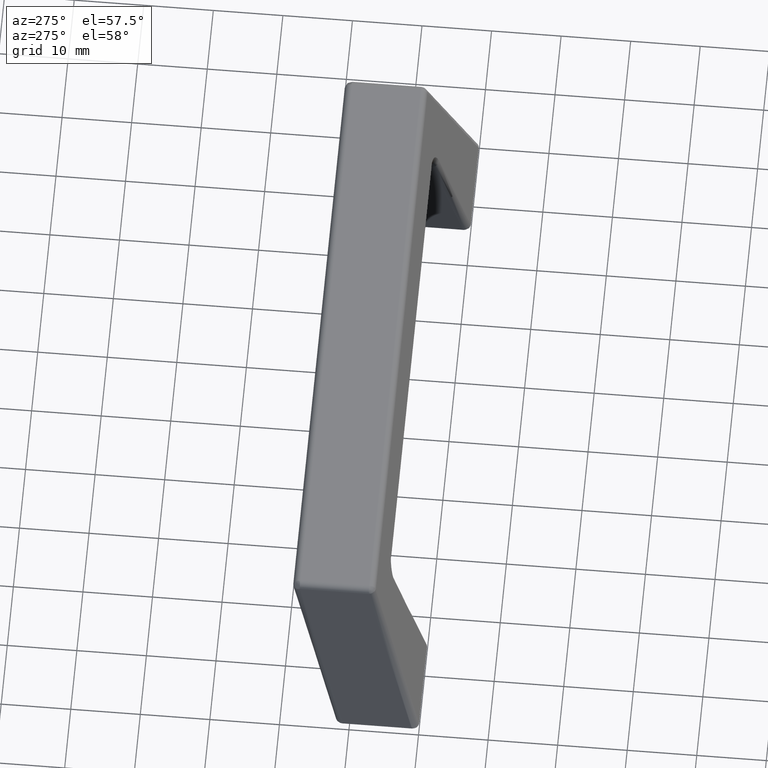
[diagram: clean part render]
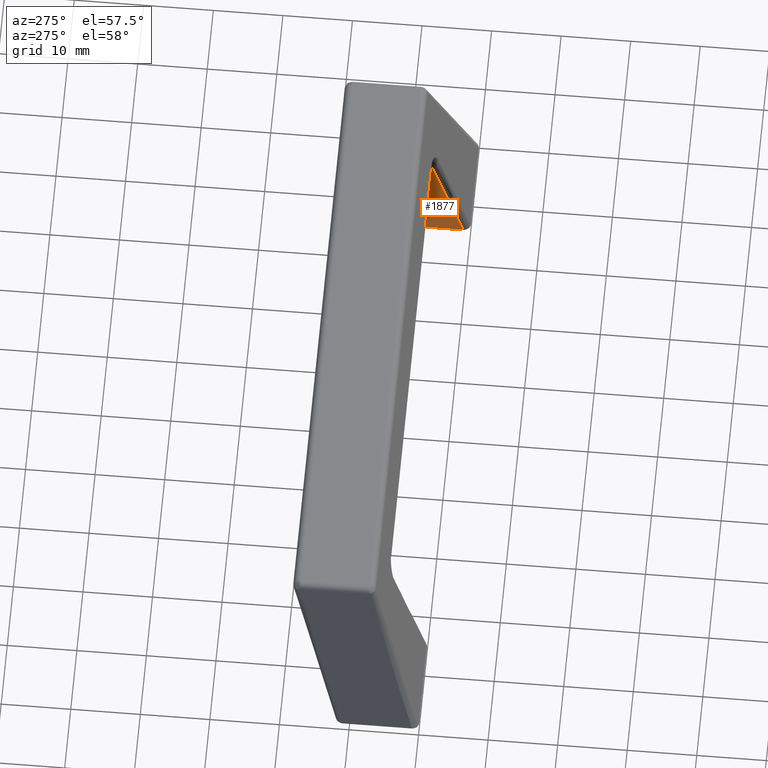
[diagram: same view with one face highlighted and labeled with its STEP entity id]
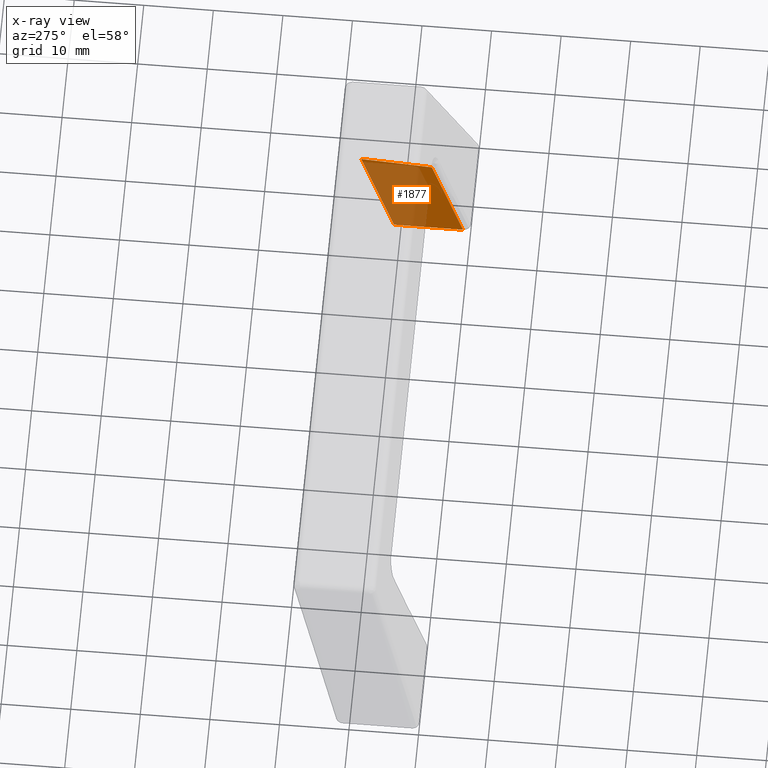
[diagram: x-ray of the same camera — body ghosted, the highlighted face saturated]
A machine part, auxiliary view. The second image highlights one B-rep face of the part: STEP entity #1877.
The next image is the same camera in x-ray: the body ghosted, the highlighted face saturated — about 68% of this face is hidden behind the body in this view.
In plain terms, the highlighted face is a freeform B-spline surface patch.
Its self-contained STEP definition (entity closure, byte-faithful):
#440=CARTESIAN_POINT('',(35.0,5.527325374033150,16.033100032198501));
#441=VERTEX_POINT('',#440);
#455=CARTESIAN_POINT('',(35.0,1.038453733374300,0.0));
#456=VERTEX_POINT('',#455);
#457=CARTESIAN_POINT('',(35.0,1.038453733374300,0.0));
#458=CARTESIAN_POINT('',(35.0,5.527325374033150,16.033100032198501));
#459=QUASI_UNIFORM_CURVE('',1,(#457,#458),.UNSPECIFIED.,.F.,.U.);
#460=EDGE_CURVE('',#456,#441,#459,.T.);
#1526=CARTESIAN_POINT('',(35.0,15.682066944421750,16.860024986017951));
#1527=VERTEX_POINT('',#1526);
#1587=CARTESIAN_POINT('',(35.0,10.961544145976600,0.0));
#1588=VERTEX_POINT('',#1587);
#1606=CARTESIAN_POINT('',(35.0,15.682066944421750,16.860024986017951));
#1607=CARTESIAN_POINT('',(35.0,10.961544145976600,0.0));
#1608=QUASI_UNIFORM_CURVE('',1,(#1606,#1607),.UNSPECIFIED.,.F.,.U.);
#1609=EDGE_CURVE('',#1527,#1588,#1608,.T.);
#1634=CARTESIAN_POINT('',(35.0,5.527325374033150,16.033100032198501));
#1635=CARTESIAN_POINT('',(35.0,15.682066944421750,16.860024986017951));
#1636=QUASI_UNIFORM_CURVE('',1,(#1634,#1635),.UNSPECIFIED.,.F.,.U.);
#1637=EDGE_CURVE('',#441,#1527,#1636,.T.);
#1799=CARTESIAN_POINT('',(35.0,10.961544145976600,0.0));
#1800=CARTESIAN_POINT('',(35.0,1.038453733374300,0.0));
#1801=QUASI_UNIFORM_CURVE('',1,(#1799,#1800),.UNSPECIFIED.,.F.,.U.);
#1802=EDGE_CURVE('',#1588,#456,#1801,.T.);
#1866=CARTESIAN_POINT('',(35.0,0.307005144400878,17.702183676201098));
#1867=CARTESIAN_POINT('',(35.0,0.307005144400878,-0.842158690183150));
#1868=CARTESIAN_POINT('',(35.0,16.413515795243381,17.702183676201098));
#1869=CARTESIAN_POINT('',(35.0,16.413515795243381,-0.842158690183150));
#1870=B_SPLINE_SURFACE_WITH_KNOTS('',1,1,((#1866,#1868),(#1867,#1869)),.UNSPECIFIED.,.F.,.F.,.U.,(2,2),(2,2),(0.0,18.544342366384249),(0.0,16.106510650842502),.UNSPECIFIED.);
#1871=ORIENTED_EDGE('',*,*,#1802,.T.);
#1872=ORIENTED_EDGE('',*,*,#460,.T.);
#1873=ORIENTED_EDGE('',*,*,#1637,.T.);
#1874=ORIENTED_EDGE('',*,*,#1609,.T.);
#1875=EDGE_LOOP('',(#1871,#1872,#1873,#1874));
#1876=FACE_OUTER_BOUND('',#1875,.T.);
#1877=ADVANCED_FACE('',(#1876),#1870,.F.);